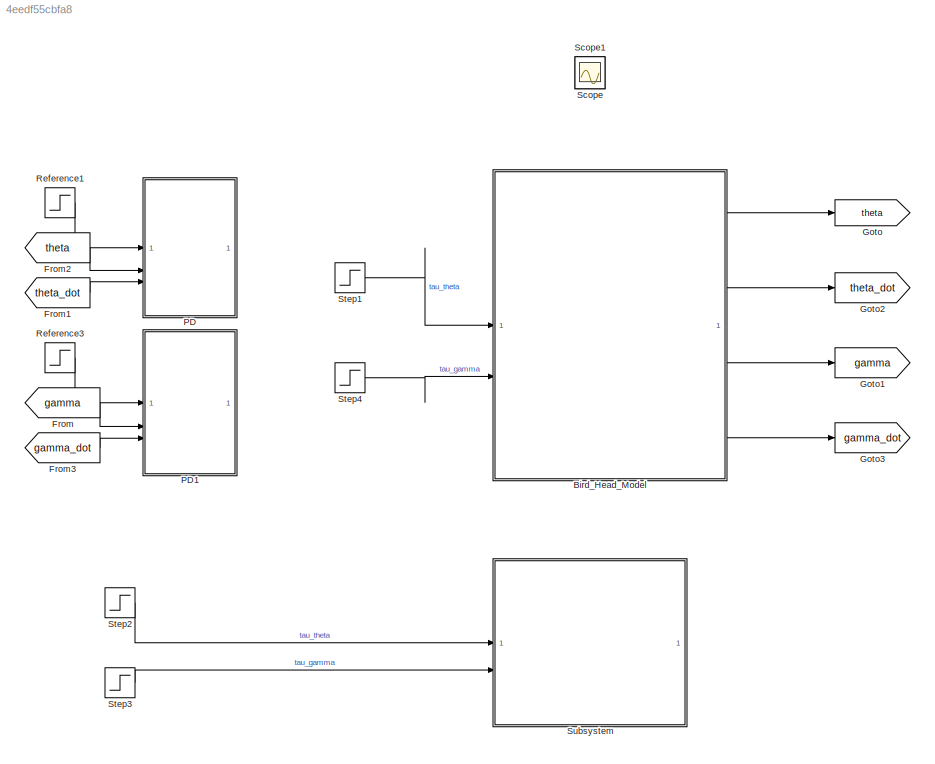
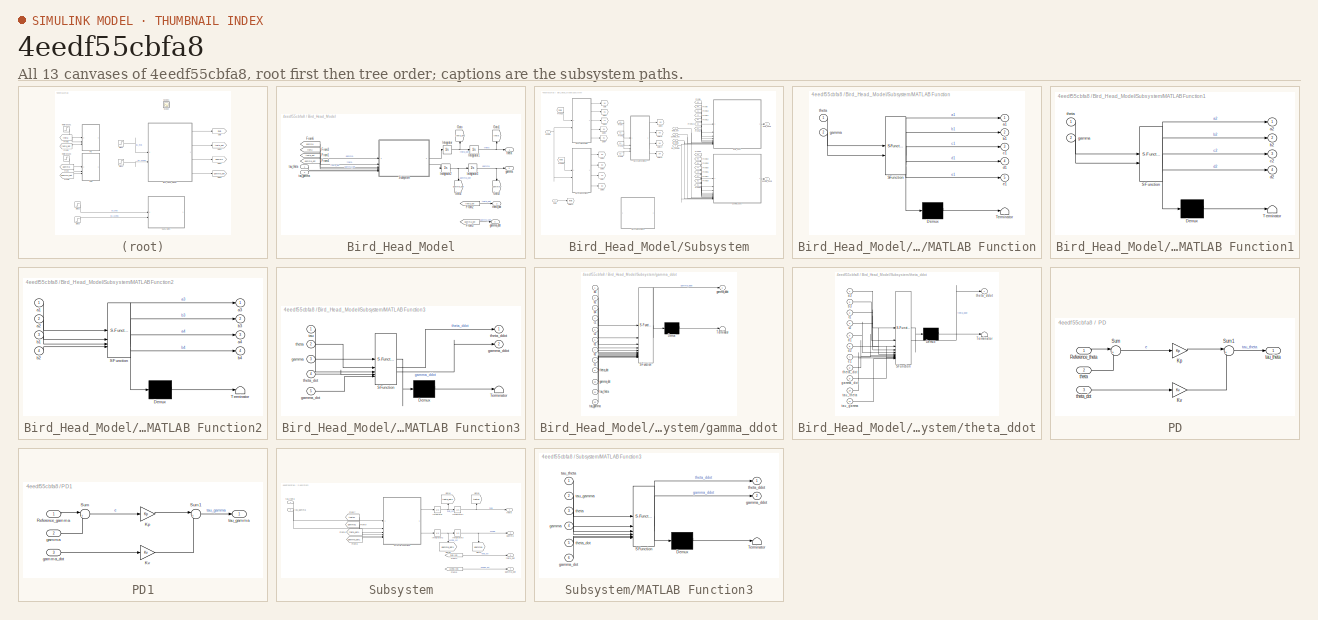
[diagram: thumbnail index - all 13 canvases of the model, root first then tree order]
MODEL slx_4eedf55cbfa8
KIND model
CONFIG AbsTol = auto
CONFIG EnableMultiTasking = off
CONFIG FixedStep = auto
CONFIG MaxStep = auto
CONFIG MinStep = auto
CONFIG RelTol = 1e-3
CONFIG SampleTimeConstraint = Unconstrained
CONFIG SolverName = VariableStepAuto
CONFIG StartTime = 0.0
CONFIG StopTime = 30
BLOCK [SubSystem] Bird_Head_Model
BLOCK [From] Bird_Head_Model/From1
  GotoTag = theta_dot
BLOCK [From] Bird_Head_Model/From2
  GotoTag = theta_dot
BLOCK [From] Bird_Head_Model/From3
  GotoTag = theta
BLOCK [From] Bird_Head_Model/From4
  GotoTag = gamma_dot
BLOCK [From] Bird_Head_Model/From5
  GotoTag = gamma_dot
BLOCK [From] Bird_Head_Model/From6
  GotoTag = gamma
BLOCK [Goto] Bird_Head_Model/Goto
  GotoTag = theta_dot
  NameLocation = right
BLOCK [Goto] Bird_Head_Model/Goto1
  GotoTag = theta
  NameLocation = right
BLOCK [Goto] Bird_Head_Model/Goto2
  GotoTag = gamma_dot
  NameLocation = left
BLOCK [Goto] Bird_Head_Model/Goto3
  GotoTag = gamma
  NameLocation = left
BLOCK [Integrator] Bird_Head_Model/Integrator
  ContinuousStateAttributes = 'theta_dot'
BLOCK [Integrator] Bird_Head_Model/Integrator1
  ContinuousStateAttributes = 'theta'
  LowerSaturationLimit = -pi/3
  UpperSaturationLimit = 2*pi/9
  WrapState = on
BLOCK [Integrator] Bird_Head_Model/Integrator2
  ContinuousStateAttributes = 'gamma_dot'
BLOCK [Integrator] Bird_Head_Model/Integrator3
  ContinuousStateAttributes = 'gamma'
  LowerSaturationLimit = -pi/3
  UpperSaturationLimit = 2*pi/9
  WrapState = on
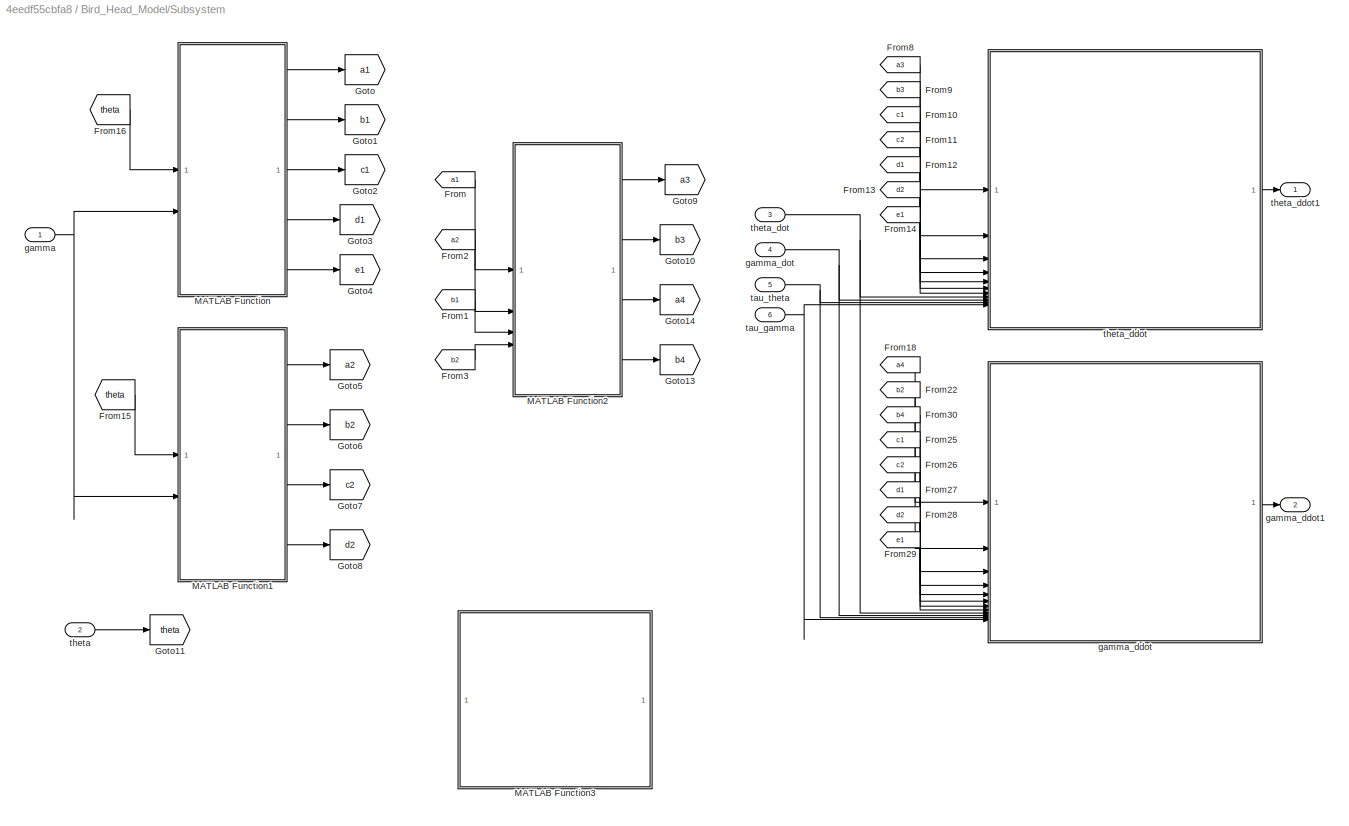
BLOCK [SubSystem] Bird_Head_Model/Subsystem
BLOCK [From] Bird_Head_Model/Subsystem/From
  GotoTag = a1
BLOCK [From] Bird_Head_Model/Subsystem/From1
  GotoTag = b1
BLOCK [From] Bird_Head_Model/Subsystem/From10
  GotoTag = c1
BLOCK [From] Bird_Head_Model/Subsystem/From11
  GotoTag = c2
BLOCK [From] Bird_Head_Model/Subsystem/From12
  GotoTag = d1
BLOCK [From] Bird_Head_Model/Subsystem/From13
  GotoTag = d2
BLOCK [From] Bird_Head_Model/Subsystem/From14
  GotoTag = e1
BLOCK [From] Bird_Head_Model/Subsystem/From15
  GotoTag = theta
BLOCK [From] Bird_Head_Model/Subsystem/From16
  GotoTag = theta
BLOCK [From] Bird_Head_Model/Subsystem/From18
  GotoTag = a4
BLOCK [From] Bird_Head_Model/Subsystem/From2
  GotoTag = a2
BLOCK [From] Bird_Head_Model/Subsystem/From22
  GotoTag = b2
BLOCK [From] Bird_Head_Model/Subsystem/From25
  GotoTag = c1
BLOCK [From] Bird_Head_Model/Subsystem/From26
  GotoTag = c2
BLOCK [From] Bird_Head_Model/Subsystem/From27
  GotoTag = d1
BLOCK [From] Bird_Head_Model/Subsystem/From28
  GotoTag = d2
BLOCK [From] Bird_Head_Model/Subsystem/From29
  GotoTag = e1
BLOCK [From] Bird_Head_Model/Subsystem/From3
  GotoTag = b2
BLOCK [From] Bird_Head_Model/Subsystem/From30
  GotoTag = b4
BLOCK [From] Bird_Head_Model/Subsystem/From8
  GotoTag = a3
BLOCK [From] Bird_Head_Model/Subsystem/From9
  GotoTag = b3
BLOCK [Goto] Bird_Head_Model/Subsystem/Goto
  GotoTag = a1
BLOCK [Goto] Bird_Head_Model/Subsystem/Goto1
  GotoTag = b1
BLOCK [Goto] Bird_Head_Model/Subsystem/Goto10
  GotoTag = b3
BLOCK [Goto] Bird_Head_Model/Subsystem/Goto11
  GotoTag = theta
BLOCK [Goto] Bird_Head_Model/Subsystem/Goto13
  GotoTag = b4
BLOCK [Goto] Bird_Head_Model/Subsystem/Goto14
  GotoTag = a4
BLOCK [Goto] Bird_Head_Model/Subsystem/Goto2
  GotoTag = c1
BLOCK [Goto] Bird_Head_Model/Subsystem/Goto3
  GotoTag = d1
BLOCK [Goto] Bird_Head_Model/Subsystem/Goto4
  GotoTag = e1
BLOCK [Goto] Bird_Head_Model/Subsystem/Goto5
  GotoTag = a2
BLOCK [Goto] Bird_Head_Model/Subsystem/Goto6
  GotoTag = b2
BLOCK [Goto] Bird_Head_Model/Subsystem/Goto7
  GotoTag = c2
BLOCK [Goto] Bird_Head_Model/Subsystem/Goto8
  GotoTag = d2
BLOCK [Goto] Bird_Head_Model/Subsystem/Goto9
  GotoTag = a3
BLOCK [SubSystem] Bird_Head_Model/Subsystem/MATLAB Function
  ErrorFcn = Stateflow.Translate.translate
  LibrarySourceBlock = simulink/User-Defined\nFunctions/MATLAB Function
  PermitHierarchicalResolution = ExplicitOnly
  SFBlockType = MATLAB Function
  TreatAsAtomicUnit = on
BLOCK [Demux] Bird_Head_Model/Subsystem/MATLAB Function/ Demux 
  Outputs = 1
BLOCK [S-Function] Bird_Head_Model/Subsystem/MATLAB Function/ SFunction 
  EnableBusSupport = on
  FunctionName = sf_sfun
  Parameters = I_by,I_hy,g,l_b,l_h,m_h
  PortCounts = [2 6]
  SFcnIsStateOwnerBlock = off
  SFunctionDeploymentMode = off
  Tag = Stateflow S-Function 16
BLOCK [Terminator] Bird_Head_Model/Subsystem/MATLAB Function/ Terminator 
BLOCK [Outport] Bird_Head_Model/Subsystem/MATLAB Function/a1
BLOCK [Outport] Bird_Head_Model/Subsystem/MATLAB Function/b1
  Port = 2
BLOCK [Outport] Bird_Head_Model/Subsystem/MATLAB Function/c1
  Port = 3
BLOCK [Outport] Bird_Head_Model/Subsystem/MATLAB Function/d1
  Port = 4
BLOCK [Outport] Bird_Head_Model/Subsystem/MATLAB Function/e1
  Port = 5
BLOCK [Inport] Bird_Head_Model/Subsystem/MATLAB Function/gamma
  Port = 2
BLOCK [Inport] Bird_Head_Model/Subsystem/MATLAB Function/theta
BLOCK [SubSystem] Bird_Head_Model/Subsystem/MATLAB Function1
  ErrorFcn = Stateflow.Translate.translate
  LibrarySourceBlock = simulink/User-Defined\nFunctions/MATLAB Function
  PermitHierarchicalResolution = ExplicitOnly
  SFBlockType = MATLAB Function
  TreatAsAtomicUnit = on
BLOCK [Demux] Bird_Head_Model/Subsystem/MATLAB Function1/ Demux 
  Outputs = 1
BLOCK [S-Function] Bird_Head_Model/Subsystem/MATLAB Function1/ SFunction 
  EnableBusSupport = on
  FunctionName = sf_sfun
  Parameters = I_by,I_hy,g,l_b,l_h,m_h
  PortCounts = [2 5]
  SFcnIsStateOwnerBlock = off
  SFunctionDeploymentMode = off
  Tag = Stateflow S-Function 17
BLOCK [Terminator] Bird_Head_Model/Subsystem/MATLAB Function1/ Terminator 
BLOCK [Outport] Bird_Head_Model/Subsystem/MATLAB Function1/a2
BLOCK [Outport] Bird_Head_Model/Subsystem/MATLAB Function1/b2
  Port = 2
BLOCK [Outport] Bird_Head_Model/Subsystem/MATLAB Function1/c2
  Port = 3
BLOCK [Outport] Bird_Head_Model/Subsystem/MATLAB Function1/d2
  Port = 4
BLOCK [Inport] Bird_Head_Model/Subsystem/MATLAB Function1/gamma
  Port = 2
BLOCK [Inport] Bird_Head_Model/Subsystem/MATLAB Function1/theta
BLOCK [SubSystem] Bird_Head_Model/Subsystem/MATLAB Function2
  ErrorFcn = Stateflow.Translate.translate
  LibrarySourceBlock = simulink/User-Defined\nFunctions/MATLAB Function
  PermitHierarchicalResolution = ExplicitOnly
  SFBlockType = MATLAB Function
  TreatAsAtomicUnit = on
BLOCK [Demux] Bird_Head_Model/Subsystem/MATLAB Function2/ Demux 
  Outputs = 1
BLOCK [S-Function] Bird_Head_Model/Subsystem/MATLAB Function2/ SFunction 
  EnableBusSupport = on
  FunctionName = sf_sfun
  PortCounts = [4 5]
  SFcnIsStateOwnerBlock = off
  SFunctionDeploymentMode = off
  Tag = Stateflow S-Function 18
BLOCK [Terminator] Bird_Head_Model/Subsystem/MATLAB Function2/ Terminator 
BLOCK [Inport] Bird_Head_Model/Subsystem/MATLAB Function2/a1
BLOCK [Inport] Bird_Head_Model/Subsystem/MATLAB Function2/a2
  Port = 2
BLOCK [Outport] Bird_Head_Model/Subsystem/MATLAB Function2/a3
BLOCK [Outport] Bird_Head_Model/Subsystem/MATLAB Function2/a4
  Port = 3
BLOCK [Inport] Bird_Head_Model/Subsystem/MATLAB Function2/b1
  Port = 3
BLOCK [Inport] Bird_Head_Model/Subsystem/MATLAB Function2/b2
  Port = 4
BLOCK [Outport] Bird_Head_Model/Subsystem/MATLAB Function2/b3
  Port = 2
BLOCK [Outport] Bird_Head_Model/Subsystem/MATLAB Function2/b4
  Port = 4
BLOCK [SubSystem] Bird_Head_Model/Subsystem/MATLAB Function3
  Commented = on
  ErrorFcn = Stateflow.Translate.translate
  LibrarySourceBlock = simulink/User-Defined\nFunctions/MATLAB Function
  PermitHierarchicalResolution = ExplicitOnly
  SFBlockType = MATLAB Function
  TreatAsAtomicUnit = on
BLOCK [Demux] Bird_Head_Model/Subsystem/MATLAB Function3/ Demux 
  Outputs = 1
BLOCK [S-Function] Bird_Head_Model/Subsystem/MATLAB Function3/ SFunction 
  EnableBusSupport = on
  FunctionName = sf_sfun
  Parameters = I_by,I_hy,l_b,l_h,m_h
  PortCounts = [5 3]
  SFcnIsStateOwnerBlock = off
  SFunctionDeploymentMode = off
  Tag = Stateflow S-Function 2
BLOCK [Terminator] Bird_Head_Model/Subsystem/MATLAB Function3/ Terminator 
BLOCK [Inport] Bird_Head_Model/Subsystem/MATLAB Function3/gamma
  Port = 3
BLOCK [Outport] Bird_Head_Model/Subsystem/MATLAB Function3/gamma_ddot
  Port = 2
BLOCK [Inport] Bird_Head_Model/Subsystem/MATLAB Function3/gamma_dot
  Port = 5
BLOCK [Inport] Bird_Head_Model/Subsystem/MATLAB Function3/tau
BLOCK [Inport] Bird_Head_Model/Subsystem/MATLAB Function3/theta
  Port = 2
BLOCK [Outport] Bird_Head_Model/Subsystem/MATLAB Function3/theta_ddot
BLOCK [Inport] Bird_Head_Model/Subsystem/MATLAB Function3/theta_dot
  Port = 4
BLOCK [Inport] Bird_Head_Model/Subsystem/gamma
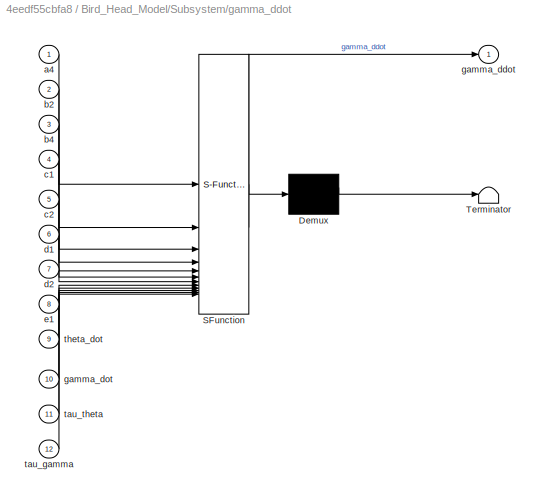
BLOCK [SubSystem] Bird_Head_Model/Subsystem/gamma_ddot
  ErrorFcn = Stateflow.Translate.translate
  LibrarySourceBlock = simulink/User-Defined\nFunctions/MATLAB Function
  PermitHierarchicalResolution = ExplicitOnly
  SFBlockType = MATLAB Function
  TreatAsAtomicUnit = on
BLOCK [Demux] Bird_Head_Model/Subsystem/gamma_ddot/ Demux 
  Outputs = 1
BLOCK [S-Function] Bird_Head_Model/Subsystem/gamma_ddot/ SFunction 
  EnableBusSupport = on
  FunctionName = sf_sfun
  PortCounts = [12 2]
  SFcnIsStateOwnerBlock = off
  SFunctionDeploymentMode = off
  Tag = Stateflow S-Function 1
BLOCK [Terminator] Bird_Head_Model/Subsystem/gamma_ddot/ Terminator 
BLOCK [Inport] Bird_Head_Model/Subsystem/gamma_ddot/a4
BLOCK [Inport] Bird_Head_Model/Subsystem/gamma_ddot/b2
  Port = 2
BLOCK [Inport] Bird_Head_Model/Subsystem/gamma_ddot/b4
  Port = 3
BLOCK [Inport] Bird_Head_Model/Subsystem/gamma_ddot/c1
  Port = 4
BLOCK [Inport] Bird_Head_Model/Subsystem/gamma_ddot/c2
  Port = 5
BLOCK [Inport] Bird_Head_Model/Subsystem/gamma_ddot/d1
  Port = 6
BLOCK [Inport] Bird_Head_Model/Subsystem/gamma_ddot/d2
  Port = 7
BLOCK [Inport] Bird_Head_Model/Subsystem/gamma_ddot/e1
  Port = 8
BLOCK [Outport] Bird_Head_Model/Subsystem/gamma_ddot/gamma_ddot
BLOCK [Inport] Bird_Head_Model/Subsystem/gamma_ddot/gamma_dot
  Port = 10
BLOCK [Inport] Bird_Head_Model/Subsystem/gamma_ddot/tau_gamma
  Port = 12
BLOCK [Inport] Bird_Head_Model/Subsystem/gamma_ddot/tau_theta
  Port = 11
BLOCK [Inport] Bird_Head_Model/Subsystem/gamma_ddot/theta_dot
  Port = 9
BLOCK [Outport] Bird_Head_Model/Subsystem/gamma_ddot1
  Port = 2
BLOCK [Inport] Bird_Head_Model/Subsystem/gamma_dot
  Port = 4
BLOCK [Inport] Bird_Head_Model/Subsystem/tau_gamma
  Port = 6
BLOCK [Inport] Bird_Head_Model/Subsystem/tau_theta
  Port = 5
BLOCK [Inport] Bird_Head_Model/Subsystem/theta
  Port = 2
BLOCK [SubSystem] Bird_Head_Model/Subsystem/theta_ddot
  ErrorFcn = Stateflow.Translate.translate
  LibrarySourceBlock = simulink/User-Defined\nFunctions/MATLAB Function
  PermitHierarchicalResolution = ExplicitOnly
  SFBlockType = MATLAB Function
  TreatAsAtomicUnit = on
BLOCK [Demux] Bird_Head_Model/Subsystem/theta_ddot/ Demux 
  Outputs = 1
BLOCK [S-Function] Bird_Head_Model/Subsystem/theta_ddot/ SFunction 
  EnableBusSupport = on
  FunctionName = sf_sfun
  PortCounts = [11 2]
  SFcnIsStateOwnerBlock = off
  SFunctionDeploymentMode = off
  Tag = Stateflow S-Function 14
BLOCK [Terminator] Bird_Head_Model/Subsystem/theta_ddot/ Terminator 
BLOCK [Inport] Bird_Head_Model/Subsystem/theta_ddot/a3
BLOCK [Inport] Bird_Head_Model/Subsystem/theta_ddot/b3
  Port = 2
BLOCK [Inport] Bird_Head_Model/Subsystem/theta_ddot/c1
  Port = 3
BLOCK [Inport] Bird_Head_Model/Subsystem/theta_ddot/c2
  Port = 4
BLOCK [Inport] Bird_Head_Model/Subsystem/theta_ddot/d1
  Port = 5
BLOCK [Inport] Bird_Head_Model/Subsystem/theta_ddot/d2
  Port = 6
BLOCK [Inport] Bird_Head_Model/Subsystem/theta_ddot/e1
  Port = 7
BLOCK [Inport] Bird_Head_Model/Subsystem/theta_ddot/gamma_dot
  Port = 9
BLOCK [Inport] Bird_Head_Model/Subsystem/theta_ddot/tau_gamma
  Port = 11
BLOCK [Inport] Bird_Head_Model/Subsystem/theta_ddot/tau_theta
  Port = 10
BLOCK [Outport] Bird_Head_Model/Subsystem/theta_ddot/theta_ddot
BLOCK [Inport] Bird_Head_Model/Subsystem/theta_ddot/theta_dot
  Port = 8
BLOCK [Outport] Bird_Head_Model/Subsystem/theta_ddot1
BLOCK [Inport] Bird_Head_Model/Subsystem/theta_dot
  Port = 3
BLOCK [Outport] Bird_Head_Model/gamma
  Port = 3
BLOCK [Outport] Bird_Head_Model/gamma_dot
  Port = 4
BLOCK [Inport] Bird_Head_Model/tau_gamma
  Port = 2
BLOCK [Inport] Bird_Head_Model/tau_theta
BLOCK [Outport] Bird_Head_Model/theta
BLOCK [Outport] Bird_Head_Model/theta_dot
  Port = 2
BLOCK [From] From
  GotoTag = gamma
BLOCK [From] From1
  GotoTag = theta_dot
BLOCK [From] From2
  GotoTag = theta
BLOCK [From] From3
  GotoTag = gamma_dot
BLOCK [Goto] Goto
  GotoTag = theta
BLOCK [Goto] Goto1
  GotoTag = gamma
BLOCK [Goto] Goto2
  GotoTag = theta_dot
BLOCK [Goto] Goto3
  GotoTag = gamma_dot
BLOCK [SubSystem] PD
BLOCK [Gain] PD/Kp
  Gain = Kp
BLOCK [Gain] PD/Kv
  Gain = Kv
BLOCK [Inport] PD/Reference_theta
BLOCK [Sum] PD/Sum
  Inputs = |+-
BLOCK [Sum] PD/Sum1
  Inputs = |+-
BLOCK [Outport] PD/tau_theta
BLOCK [Inport] PD/theta
  Port = 2
BLOCK [Inport] PD/theta_dot
  Port = 3
BLOCK [SubSystem] PD1
BLOCK [Gain] PD1/Kp
  Gain = Kp
BLOCK [Gain] PD1/Kv
  Gain = Kv
BLOCK [Inport] PD1/Reference_gamma
BLOCK [Sum] PD1/Sum
  Inputs = |+-
BLOCK [Sum] PD1/Sum1
  Inputs = |+-
BLOCK [Inport] PD1/gamma
  Port = 2
BLOCK [Inport] PD1/gamma_dot
  Port = 3
BLOCK [Outport] PD1/tau_gamma
BLOCK [Step] Reference1
  After = 8*pi/60
  SampleTime = 0
  Time = 5
BLOCK [Step] Reference3
  After = -8*pi/60
  SampleTime = 0
  Time = 5
BLOCK [Scope] Scope
  Floating = off
  IOType = viewer
  NumInputPorts = 1
  ScopeSpecificationString = Simulink.scopes.TimeScopeBlockCfg('CurrentConfiguration', extmgr.ConfigurationSet(extmgr.Configuration('Core','General UI',true),extmgr.Configuration('Core','Source UI',true),extmgr.Configuration('Sources','WiredSimulink',true),extmgr.Configuration('Visuals','Time Domain',true,'SerializedDisplays',{struct('MinYLimReal','-3.92687','MaxYLimReal','3.92653','YLabelReal','','MinYLimMag','0.00000','MaxY...<+1395ch>
BLOCK [Scope] Scope1
  Floating = off
  IOType = viewer
  NumInputPorts = 1
  ScopeSpecificationString = Simulink.scopes.TimeScopeBlockCfg('CurrentConfiguration', extmgr.ConfigurationSet(extmgr.Configuration('Core','General UI',true),extmgr.Configuration('Core','Source UI',true),extmgr.Configuration('Sources','WiredSimulink',true,'DataLoggingVariableName','ScopeData1'),extmgr.Configuration('Visuals','Time Domain',true,'SerializedDisplays',{struct('MinYLimReal','-52.35712','MaxYLimReal','52.35957','YL...<+1908ch>
BLOCK [Step] Step1
  After = 0
  SampleTime = dt
BLOCK [Step] Step2
  After = 0.001
  Commented = on
  SampleTime = 0
BLOCK [Step] Step3
  After = 0.001
  Commented = on
  SampleTime = 0
BLOCK [Step] Step4
  After = 0
  SampleTime = dt
BLOCK [SubSystem] Subsystem
  Commented = on
BLOCK [From] Subsystem/From4
  GotoTag = theta_dot1
BLOCK [From] Subsystem/From5
  GotoTag = gamma_dot1
BLOCK [From] Subsystem/From6
  GotoTag = theta_dot1
BLOCK [From] Subsystem/From7
  GotoTag = theta1
BLOCK [From] Subsystem/From8
  GotoTag = gamma_dot1
BLOCK [From] Subsystem/From9
  GotoTag = gamma1
BLOCK [Goto] Subsystem/Goto4
  GotoTag = theta_dot1
  NameLocation = right
BLOCK [Goto] Subsystem/Goto5
  GotoTag = theta1
  NameLocation = right
BLOCK [Goto] Subsystem/Goto6
  GotoTag = gamma_dot1
  NameLocation = left
BLOCK [Goto] Subsystem/Goto7
  GotoTag = gamma1
  NameLocation = left
BLOCK [Integrator] Subsystem/Integrator
  ContinuousStateAttributes = 'theta_dot'
BLOCK [Integrator] Subsystem/Integrator1
  ContinuousStateAttributes = 'theta'
  LowerSaturationLimit = -pi/3
  UpperSaturationLimit = 2*pi/9
BLOCK [Integrator] Subsystem/Integrator2
  ContinuousStateAttributes = 'gamma_dot'
BLOCK [Integrator] Subsystem/Integrator3
  ContinuousStateAttributes = 'gamma'
  LowerSaturationLimit = -pi/3
  UpperSaturationLimit = 2*pi/9
BLOCK [SubSystem] Subsystem/MATLAB Function3
  ErrorFcn = Stateflow.Translate.translate
  LibrarySourceBlock = simulink/User-Defined\nFunctions/MATLAB Function
  PermitHierarchicalResolution = ExplicitOnly
  SFBlockType = MATLAB Function
  TreatAsAtomicUnit = on
BLOCK [Demux] Subsystem/MATLAB Function3/ Demux 
  Outputs = 1
BLOCK [S-Function] Subsystem/MATLAB Function3/ SFunction 
  EnableBusSupport = on
  FunctionName = sf_sfun
  Parameters = I_by,I_hy,l_b,l_h,m_h
  PortCounts = [6 3]
  SFcnIsStateOwnerBlock = off
  SFunctionDeploymentMode = off
  Tag = Stateflow S-Function 3
BLOCK [Terminator] Subsystem/MATLAB Function3/ Terminator 
BLOCK [Inport] Subsystem/MATLAB Function3/gamma
  Port = 4
BLOCK [Outport] Subsystem/MATLAB Function3/gamma_ddot
  Port = 2
BLOCK [Inport] Subsystem/MATLAB Function3/gamma_dot
  Port = 6
BLOCK [Inport] Subsystem/MATLAB Function3/tau_gamma
  Port = 2
BLOCK [Inport] Subsystem/MATLAB Function3/tau_theta
BLOCK [Inport] Subsystem/MATLAB Function3/theta
  Port = 3
BLOCK [Outport] Subsystem/MATLAB Function3/theta_ddot
BLOCK [Inport] Subsystem/MATLAB Function3/theta_dot
  Port = 5
BLOCK [Outport] Subsystem/gamma
  Port = 2
BLOCK [Outport] Subsystem/gamma_dot
  Port = 4
BLOCK [Inport] Subsystem/tau_gamma
  Port = 2
BLOCK [Inport] Subsystem/tau_theta
BLOCK [Outport] Subsystem/theta
BLOCK [Outport] Subsystem/theta_dot
  Port = 3
LINE Bird_Head_Model/From1:1 -> Bird_Head_Model/Subsystem:3
LINE Bird_Head_Model/From2:1 -> Bird_Head_Model/theta_dot:1
LINE Bird_Head_Model/From3:1 -> Bird_Head_Model/Subsystem:2
LINE Bird_Head_Model/From4:1 -> Bird_Head_Model/Subsystem:4
LINE Bird_Head_Model/From5:1 -> Bird_Head_Model/gamma_dot:1
LINE Bird_Head_Model/From6:1 -> Bird_Head_Model/Subsystem:1
NET Bird_Head_Model/Integrator1:1 -> Bird_Head_Model/Goto1:1, Bird_Head_Model/theta:1
NET Bird_Head_Model/Integrator2:1 -> Bird_Head_Model/Goto2:1, Bird_Head_Model/Integrator3:1
NET Bird_Head_Model/Integrator3:1 -> Bird_Head_Model/Goto3:1, Bird_Head_Model/gamma:1
NET Bird_Head_Model/Integrator:1 -> Bird_Head_Model/Goto:1, Bird_Head_Model/Integrator1:1
LINE Bird_Head_Model/Subsystem/From10:1 -> Bird_Head_Model/Subsystem/theta_ddot:3
LINE Bird_Head_Model/Subsystem/From11:1 -> Bird_Head_Model/Subsystem/theta_ddot:4
LINE Bird_Head_Model/Subsystem/From12:1 -> Bird_Head_Model/Subsystem/theta_ddot:5
LINE Bird_Head_Model/Subsystem/From13:1 -> Bird_Head_Model/Subsystem/theta_ddot:6
LINE Bird_Head_Model/Subsystem/From14:1 -> Bird_Head_Model/Subsystem/theta_ddot:7
LINE Bird_Head_Model/Subsystem/From15:1 -> Bird_Head_Model/Subsystem/MATLAB Function1:1
LINE Bird_Head_Model/Subsystem/From16:1 -> Bird_Head_Model/Subsystem/MATLAB Function:1
LINE Bird_Head_Model/Subsystem/From18:1 -> Bird_Head_Model/Subsystem/gamma_ddot:1
LINE Bird_Head_Model/Subsystem/From1:1 -> Bird_Head_Model/Subsystem/MATLAB Function2:3
LINE Bird_Head_Model/Subsystem/From22:1 -> Bird_Head_Model/Subsystem/gamma_ddot:2
LINE Bird_Head_Model/Subsystem/From25:1 -> Bird_Head_Model/Subsystem/gamma_ddot:4
LINE Bird_Head_Model/Subsystem/From26:1 -> Bird_Head_Model/Subsystem/gamma_ddot:5
LINE Bird_Head_Model/Subsystem/From27:1 -> Bird_Head_Model/Subsystem/gamma_ddot:6
LINE Bird_Head_Model/Subsystem/From28:1 -> Bird_Head_Model/Subsystem/gamma_ddot:7
LINE Bird_Head_Model/Subsystem/From29:1 -> Bird_Head_Model/Subsystem/gamma_ddot:8
LINE Bird_Head_Model/Subsystem/From2:1 -> Bird_Head_Model/Subsystem/MATLAB Function2:2
LINE Bird_Head_Model/Subsystem/From30:1 -> Bird_Head_Model/Subsystem/gamma_ddot:3
LINE Bird_Head_Model/Subsystem/From3:1 -> Bird_Head_Model/Subsystem/MATLAB Function2:4
LINE Bird_Head_Model/Subsystem/From8:1 -> Bird_Head_Model/Subsystem/theta_ddot:1
LINE Bird_Head_Model/Subsystem/From9:1 -> Bird_Head_Model/Subsystem/theta_ddot:2
LINE Bird_Head_Model/Subsystem/From:1 -> Bird_Head_Model/Subsystem/MATLAB Function2:1
LINE Bird_Head_Model/Subsystem/MATLAB Function1:1 -> Bird_Head_Model/Subsystem/Goto5:1
LINE Bird_Head_Model/Subsystem/MATLAB Function1:2 -> Bird_Head_Model/Subsystem/Goto6:1
LINE Bird_Head_Model/Subsystem/MATLAB Function1:3 -> Bird_Head_Model/Subsystem/Goto7:1
LINE Bird_Head_Model/Subsystem/MATLAB Function1:4 -> Bird_Head_Model/Subsystem/Goto8:1
LINE Bird_Head_Model/Subsystem/MATLAB Function2:1 -> Bird_Head_Model/Subsystem/Goto9:1
LINE Bird_Head_Model/Subsystem/MATLAB Function2:2 -> Bird_Head_Model/Subsystem/Goto10:1
LINE Bird_Head_Model/Subsystem/MATLAB Function2:3 -> Bird_Head_Model/Subsystem/Goto14:1
LINE Bird_Head_Model/Subsystem/MATLAB Function2:4 -> Bird_Head_Model/Subsystem/Goto13:1
LINE Bird_Head_Model/Subsystem/MATLAB Function:1 -> Bird_Head_Model/Subsystem/Goto:1
LINE Bird_Head_Model/Subsystem/MATLAB Function:2 -> Bird_Head_Model/Subsystem/Goto1:1
LINE Bird_Head_Model/Subsystem/MATLAB Function:3 -> Bird_Head_Model/Subsystem/Goto2:1
LINE Bird_Head_Model/Subsystem/MATLAB Function:4 -> Bird_Head_Model/Subsystem/Goto3:1
LINE Bird_Head_Model/Subsystem/MATLAB Function:5 -> Bird_Head_Model/Subsystem/Goto4:1
NET Bird_Head_Model/Subsystem/gamma:1 -> Bird_Head_Model/Subsystem/MATLAB Function1:2, Bird_Head_Model/Subsystem/MATLAB Function:2
LINE Bird_Head_Model/Subsystem/gamma_ddot:1 -> Bird_Head_Model/Subsystem/gamma_ddot1:1
NET Bird_Head_Model/Subsystem/gamma_dot:1 -> Bird_Head_Model/Subsystem/gamma_ddot:10, Bird_Head_Model/Subsystem/theta_ddot:9
NET Bird_Head_Model/Subsystem/tau_gamma:1 -> Bird_Head_Model/Subsystem/gamma_ddot:12, Bird_Head_Model/Subsystem/theta_ddot:11
NET Bird_Head_Model/Subsystem/tau_theta:1 -> Bird_Head_Model/Subsystem/gamma_ddot:11, Bird_Head_Model/Subsystem/theta_ddot:10
LINE Bird_Head_Model/Subsystem/theta:1 -> Bird_Head_Model/Subsystem/Goto11:1
LINE Bird_Head_Model/Subsystem/theta_ddot:1 -> Bird_Head_Model/Subsystem/theta_ddot1:1
NET Bird_Head_Model/Subsystem/theta_dot:1 -> Bird_Head_Model/Subsystem/gamma_ddot:9, Bird_Head_Model/Subsystem/theta_ddot:8
LINE Bird_Head_Model/Subsystem:1 -> Bird_Head_Model/Integrator:1
LINE Bird_Head_Model/Subsystem:2 -> Bird_Head_Model/Integrator2:1
LINE Bird_Head_Model/tau_gamma:1 -> Bird_Head_Model/Subsystem:6
LINE Bird_Head_Model/tau_theta:1 -> Bird_Head_Model/Subsystem:5
LINE Bird_Head_Model:1 -> Goto:1
LINE Bird_Head_Model:2 -> Goto2:1
LINE Bird_Head_Model:3 -> Goto1:1
LINE Bird_Head_Model:4 -> Goto3:1
LINE From1:1 -> PD:3
LINE From2:1 -> PD:2
LINE From3:1 -> PD1:3
LINE From:1 -> PD1:2
LINE PD/Kp:1 -> PD/Sum1:1
LINE PD/Kv:1 -> PD/Sum1:2
LINE PD/Reference_theta:1 -> PD/Sum:1
LINE PD/Sum1:1 -> PD/tau_theta:1
LINE PD/Sum:1 -> PD/Kp:1
LINE PD/theta:1 -> PD/Sum:2
LINE PD/theta_dot:1 -> PD/Kv:1
LINE PD1/Kp:1 -> PD1/Sum1:1
LINE PD1/Kv:1 -> PD1/Sum1:2
LINE PD1/Reference_gamma:1 -> PD1/Sum:1
LINE PD1/Sum1:1 -> PD1/tau_gamma:1
LINE PD1/Sum:1 -> PD1/Kp:1
LINE PD1/gamma:1 -> PD1/Sum:2
LINE PD1/gamma_dot:1 -> PD1/Kv:1
LINE Reference1:1 -> PD:1
LINE Reference3:1 -> PD1:1
LINE Step1:1 -> Bird_Head_Model:1
LINE Step2:1 -> Subsystem:1
LINE Step3:1 -> Subsystem:2
LINE Step4:1 -> Bird_Head_Model:2
LINE Subsystem/From4:1 -> Subsystem/theta_dot:1
LINE Subsystem/From5:1 -> Subsystem/gamma_dot:1
LINE Subsystem/From6:1 -> Subsystem/MATLAB Function3:5
LINE Subsystem/From7:1 -> Subsystem/MATLAB Function3:3
LINE Subsystem/From8:1 -> Subsystem/MATLAB Function3:6
LINE Subsystem/From9:1 -> Subsystem/MATLAB Function3:4
NET Subsystem/Integrator1:1 -> Subsystem/Goto5:1, Subsystem/theta:1
NET Subsystem/Integrator2:1 -> Subsystem/Goto6:1, Subsystem/Integrator3:1
NET Subsystem/Integrator3:1 -> Subsystem/Goto7:1, Subsystem/gamma:1
NET Subsystem/Integrator:1 -> Subsystem/Goto4:1, Subsystem/Integrator1:1
LINE Subsystem/MATLAB Function3:1 -> Subsystem/Integrator:1
LINE Subsystem/MATLAB Function3:2 -> Subsystem/Integrator2:1
LINE Subsystem/tau_gamma:1 -> Subsystem/MATLAB Function3:2
LINE Subsystem/tau_theta:1 -> Subsystem/MATLAB Function3:1
note: NET lines group one-source signal fan-out (src -> all destinations, sorted); 1:1 wires keep LINE
CHART Bird_Head_Model/Subsystem/MATLAB Function1 states=1 transitions=1
  STATE_LABEL 'eML_blk_kernel()'
  STATE_LABEL 'SCRIPT:\nfunction [a2, b2, c2, d2] = coefs2(theta, gamma, m_h, l_b, l_h, I_hy, I_by, g)\na2 = I_hy+l_h^2*m_h+l_b*l_h*m_h*cos(gamma);\nb2 = I_hy + l_h^2*m_h;\nc2 = l_b*l_h*m_h*sin(gamma);\nd2 = -l_h*m_h*cos(gamma+theta);'
CHART Bird_Head_Model/Subsystem/MATLAB Function2 states=1 transitions=1
  STATE_LABEL 'eML_blk_kernel()'
  STATE_LABEL 'SCRIPT:\nfunction [a3, b3, a4, b4] = coefs3(a1, a2, b1, b2)\n\na3 = (b1/(a2*b1-a1*b2));\nb3 = (b2/(a2*b1-a1*b2));\na4 = a3*a2/b2;\nb4 = b3*a2/b2;\n'
CHART Bird_Head_Model/Subsystem/gamma_ddot states=1 transitions=1
  STATE_LABEL 'eML_blk_kernel()'
  STATE_LABEL 'SCRIPT:\nfunction gamma_ddot = fcn(a4,b2,b4, c1,c2,d1,d2,e1,theta_dot, gamma_dot,tau_theta, tau_gamma)\nI_hy = 0.0001;\nI_by = 0.0001;\nl_h = 0.040;\nl_b = 0.050;\nm_h = 0.0049;\ng = 9.8;\ngamma_ddot = tau_gamma * (1/b2 - a4) + (a4*c2-c2/b2)*theta_dot^2 + (a4*d2-b4*e1-d2/b2)*g + b4*tau_theta -b4*c1*gamma_dot^2 - b4*d1*theta_dot*gamma_dot;\n'
CHART Bird_Head_Model/Subsystem/MATLAB Function3 states=1 transitions=1
  STATE_LABEL 'eML_blk_kernel()'
  STATE_LABEL 'SCRIPT:\nfunction [theta_ddot, gamma_ddot] = fcn(tau,theta,gamma,theta_dot,gamma_dot, I_hy, m_h, l_b, l_h, I_by)\n\nm11 = I_hy+I_by+(l_b^2+l_h^2)*m_h+ 2*l_b*l_h*m_h*cos(gamma);\nm12 = I_hy+l_h^2*m_h*sin(2*gamma)+l_b*l_h*m_h*sin(gamma);\nm21 = I_hy+l_h^2*m_h*sin(2*gamma) + l_b*l_h*m_h*sin(gamma);\nm22 = I_hy + l_h^2*m_h;\n\nM=[m11 m12;\n   m21 m22];\n\n\nc11 = -2*l_b*l_h *m_h*sin(gamma)*gamma_dot;\nc12 = (2*l_h...<+316ch>'
CHART Subsystem/MATLAB Function3 states=1 transitions=1
  STATE_LABEL 'eML_blk_kernel()'
  STATE_LABEL 'SCRIPT:\nfunction [theta_ddot, gamma_ddot] = fcn(tau_theta, tau_gamma,theta,gamma,theta_dot,gamma_dot, I_hy, m_h, l_b, l_h, I_by)\n\ntau = [tau_theta, tau_gamma];\n\nm11 = I_hy+I_by+(l_b^2+l_h^2)*m_h+ 2*l_b*l_h*m_h*cos(gamma);\nm12 = I_hy+l_h^2*m_h*sin(2*gamma)+l_b*l_h*m_h*sin(gamma);\nm21 = I_hy+l_h^2*m_h*sin(2*gamma) + l_b*l_h*m_h*sin(gamma);\nm22 = I_hy + l_h^2*m_h;\n\nM=[m11 m12;\n   m21 m22];\n\n\nc11 = -2...<+363ch>'
CHART Bird_Head_Model/Subsystem/theta_ddot states=1 transitions=1
  STATE_LABEL 'eML_blk_kernel()'
  STATE_LABEL 'SCRIPT:\nfunction theta_ddot = fcn(a3,b3,c1,c2,d1,d2,e1,theta_dot, gamma_dot,tau_theta, tau_gamma)\nI_by=0.00003;\nI_hy=0.00005;\nl_b=0.1;\nl_h=0.05;\nm_b=0.51;\nm_h=0.005;\ng = 9.8;\ntheta_ddot = a3*tau_gamma - a3*c2*theta_dot^2 - a3*d2*g -b3*tau_theta + b3*c1*gamma_dot^2 + b3*d1*theta_dot*gamma_dot + b3*e1*g ;\n'
CHART Bird_Head_Model/Subsystem/MATLAB Function states=1 transitions=1
  STATE_LABEL 'eML_blk_kernel()'
  STATE_LABEL 'SCRIPT:\nfunction [a1, b1, c1, d1, e1] = coefs1(theta, gamma, m_h,l_b,  l_h, I_hy, I_by, g)\na1 = I_hy+I_by+(l_b^2+l_h^2)*m_h+2*l_b*l_h*m_h*cos(gamma);\nb1 = I_hy+l_h^2*m_h+l_b*l_h*m_h*cos(gamma);\nc1 = -l_b*l_h*m_h*sin(gamma);\nd1 = -2*l_b*l_h*m_h*sin(gamma);\ne1 = -m_h*cos(gamma)*(l_b+l_h*cos(gamma))+l_h*m_h*sin(gamma)*sin(theta);\n\n\n'
CHART  states=0 transitions=0
CHART  states=0 transitions=0
CHART  states=0 transitions=0
CHART  states=0 transitions=0
CHART  states=0 transitions=0
CHART  states=0 transitions=0
CHART  states=0 transitions=0
